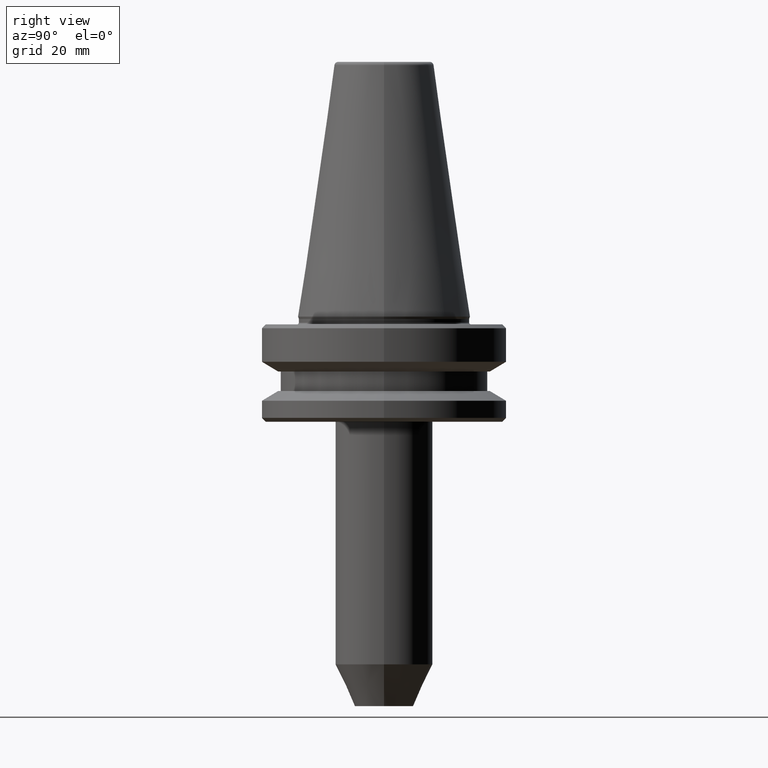
[diagram: clean part render]
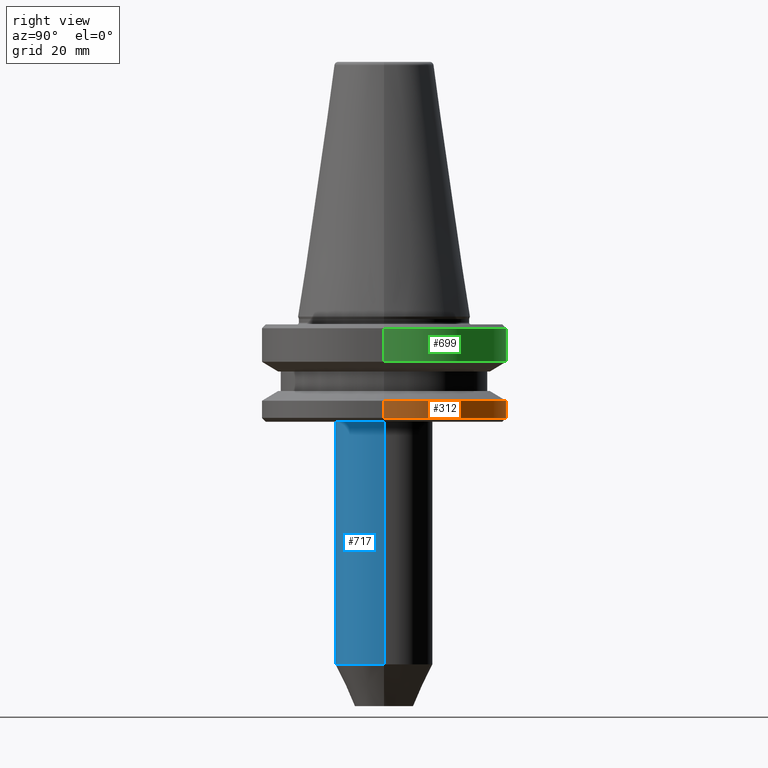
[diagram: same view with three faces highlighted in distinct colors, each labeled with its STEP entity id]
A machine part, right view with three faces highlighted in distinct colors.
Their STEP definitions:

[orange] entity #312 — the highlighted cylindrical surface (partial cylindrical patch) has radius 31.5 mm, axis along (-0, -0, 1).
#23 = VECTOR ( 'NONE', #727, 1000.000000000000000 ) ;
#25 = ORIENTED_EDGE ( 'NONE', *, *, #746, .T. ) ;
#66 = EDGE_CURVE ( 'NONE', #132, #612, #484, .T. ) ;
#72 = CARTESIAN_POINT ( 'NONE',  ( 31.49999999999975100, 0.0000000000000000000, -21.60014200631771400 ) ) ;
#83 = ORIENTED_EDGE ( 'NONE', *, *, #366, .F. ) ;
#124 = CARTESIAN_POINT ( 'NONE',  ( 31.49999999999975100, 0.0000000000000000000, 94.60731411746931500 ) ) ;
#132 = VERTEX_POINT ( 'NONE', #336 ) ;
#144 = AXIS2_PLACEMENT_3D ( 'NONE', #305, #691, #819 ) ;
#159 = EDGE_CURVE ( 'NONE', #933, #262, #659, .T. ) ;
#173 = FACE_OUTER_BOUND ( 'NONE', #885, .T. ) ;
#184 = ORIENTED_EDGE ( 'NONE', *, *, #66, .F. ) ;
#234 = DIRECTION ( 'NONE',  ( -0.0000000000000000000, -0.0000000000000000000, 1.000000000000000000 ) ) ;
#241 = CIRCLE ( 'NONE', #947, 31.49999999999975100 ) ;
#243 = ORIENTED_EDGE ( 'NONE', *, *, #159, .T. ) ;
#262 = VERTEX_POINT ( 'NONE', #760 ) ;
#305 = CARTESIAN_POINT ( 'NONE',  ( 0.0000000000000000000, 0.0000000000000000000, -21.60014200631771400 ) ) ;
#312 = ADVANCED_FACE ( 'NONE', ( #173 ), #961, .T. ) ;
#336 = CARTESIAN_POINT ( 'NONE',  ( 31.49999999999975100, 0.0000000000000000000, -26.00000000000057900 ) ) ;
#366 = EDGE_CURVE ( 'NONE', #612, #262, #701, .T. ) ;
#433 = CARTESIAN_POINT ( 'NONE',  ( -31.49999999999975100, 3.857637417314131900E-015, 94.60731411746931500 ) ) ;
#484 = LINE ( 'NONE', #124, #23 ) ;
#522 = CARTESIAN_POINT ( 'NONE',  ( 0.0000000000000000000, 0.0000000000000000000, 94.60731411746931500 ) ) ;
#599 = VECTOR ( 'NONE', #234, 1000.000000000000000 ) ;
#602 = DIRECTION ( 'NONE',  ( -0.0000000000000000000, -0.0000000000000000000, 1.000000000000000000 ) ) ;
#612 = VERTEX_POINT ( 'NONE', #72 ) ;
#659 = LINE ( 'NONE', #433, #599 ) ;
#674 = DIRECTION ( 'NONE',  ( 1.000000000000000000, 0.0000000000000000000, 0.0000000000000000000 ) ) ;
#676 = CARTESIAN_POINT ( 'NONE',  ( -31.49999999999975100, 3.857637417314131900E-015, -26.00000000000057900 ) ) ;
#686 = CARTESIAN_POINT ( 'NONE',  ( 0.0000000000000000000, 0.0000000000000000000, -26.00000000000057900 ) ) ;
#691 = DIRECTION ( 'NONE',  ( -0.0000000000000000000, -0.0000000000000000000, 1.000000000000000000 ) ) ;
#701 = CIRCLE ( 'NONE', #144, 31.49999999999975100 ) ;
#706 = AXIS2_PLACEMENT_3D ( 'NONE', #522, #733, #873 ) ;
#727 = DIRECTION ( 'NONE',  ( -0.0000000000000000000, -0.0000000000000000000, 1.000000000000000000 ) ) ;
#733 = DIRECTION ( 'NONE',  ( -0.0000000000000000000, -0.0000000000000000000, 1.000000000000000000 ) ) ;
#746 = EDGE_CURVE ( 'NONE', #132, #933, #241, .T. ) ;
#760 = CARTESIAN_POINT ( 'NONE',  ( -31.49999999999975100, 3.857637417314131900E-015, -21.60014200631771400 ) ) ;
#819 = DIRECTION ( 'NONE',  ( 1.000000000000000000, 0.0000000000000000000, 0.0000000000000000000 ) ) ;
#873 = DIRECTION ( 'NONE',  ( 1.000000000000000000, 0.0000000000000000000, 0.0000000000000000000 ) ) ;
#885 = EDGE_LOOP ( 'NONE', ( #25, #243, #83, #184 ) ) ;
#933 = VERTEX_POINT ( 'NONE', #676 ) ;
#947 = AXIS2_PLACEMENT_3D ( 'NONE', #686, #602, #674 ) ;
#961 = CYLINDRICAL_SURFACE ( 'NONE', #706, 31.49999999999975100 ) ;

[blue] entity #717 — the highlighted cylindrical surface (partial cylindrical patch) has radius 12.5 mm, axis along (-0, -0, 1).
#63 = AXIS2_PLACEMENT_3D ( 'NONE', #632, #166, #149 ) ;
#122 = LINE ( 'NONE', #736, #219 ) ;
#128 = EDGE_LOOP ( 'NONE', ( #847, #201, #447, #804 ) ) ;
#131 = DIRECTION ( 'NONE',  ( -0.0000000000000000000, -0.0000000000000000000, 1.000000000000000000 ) ) ;
#135 = DIRECTION ( 'NONE',  ( 1.000000000000000000, 0.0000000000000000000, 0.0000000000000000000 ) ) ;
#149 = DIRECTION ( 'NONE',  ( 1.000000000000000000, 0.0000000000000000000, 0.0000000000000000000 ) ) ;
#166 = DIRECTION ( 'NONE',  ( -0.0000000000000000000, -0.0000000000000000000, 1.000000000000000000 ) ) ;
#178 = AXIS2_PLACEMENT_3D ( 'NONE', #192, #834, #135 ) ;
#192 = CARTESIAN_POINT ( 'NONE',  ( 0.0000000000000000000, 0.0000000000000000000, -89.27746539754971900 ) ) ;
#201 = ORIENTED_EDGE ( 'NONE', *, *, #868, .T. ) ;
#210 = EDGE_CURVE ( 'NONE', #836, #217, #565, .T. ) ;
#213 = VERTEX_POINT ( 'NONE', #773 ) ;
#217 = VERTEX_POINT ( 'NONE', #572 ) ;
#219 = VECTOR ( 'NONE', #899, 1000.000000000000000 ) ;
#310 = CARTESIAN_POINT ( 'NONE',  ( 0.0000000000000000000, 0.0000000000000000000, -27.00000000000102300 ) ) ;
#413 = CIRCLE ( 'NONE', #178, 12.49999999999973400 ) ;
#447 = ORIENTED_EDGE ( 'NONE', *, *, #210, .T. ) ;
#536 = EDGE_CURVE ( 'NONE', #213, #217, #963, .T. ) ;
#537 = CARTESIAN_POINT ( 'NONE',  ( 12.49999999999973400, 0.0000000000000000000, -89.27746539754971900 ) ) ;
#541 = VECTOR ( 'NONE', #131, 1000.000000000000000 ) ;
#546 = DIRECTION ( 'NONE',  ( 1.000000000000000000, 0.0000000000000000000, 0.0000000000000000000 ) ) ;
#565 = LINE ( 'NONE', #917, #541 ) ;
#572 = CARTESIAN_POINT ( 'NONE',  ( 12.49999999999973400, 0.0000000000000000000, -27.00000000000102300 ) ) ;
#614 = CARTESIAN_POINT ( 'NONE',  ( -12.49999999999973400, 1.530808498934158800E-015, -89.27746539754971900 ) ) ;
#632 = CARTESIAN_POINT ( 'NONE',  ( 0.0000000000000000000, 0.0000000000000000000, 94.60731411746931500 ) ) ;
#712 = EDGE_CURVE ( 'NONE', #770, #213, #122, .T. ) ;
#717 = ADVANCED_FACE ( 'NONE', ( #995 ), #915, .T. ) ;
#736 = CARTESIAN_POINT ( 'NONE',  ( -12.49999999999973400, 1.530808498934158800E-015, 94.60731411746931500 ) ) ;
#770 = VERTEX_POINT ( 'NONE', #614 ) ;
#773 = CARTESIAN_POINT ( 'NONE',  ( -12.49999999999973400, 1.530808498934158800E-015, -27.00000000000102300 ) ) ;
#804 = ORIENTED_EDGE ( 'NONE', *, *, #536, .F. ) ;
#834 = DIRECTION ( 'NONE',  ( -0.0000000000000000000, -0.0000000000000000000, 1.000000000000000000 ) ) ;
#836 = VERTEX_POINT ( 'NONE', #537 ) ;
#847 = ORIENTED_EDGE ( 'NONE', *, *, #712, .F. ) ;
#863 = AXIS2_PLACEMENT_3D ( 'NONE', #310, #902, #546 ) ;
#868 = EDGE_CURVE ( 'NONE', #770, #836, #413, .T. ) ;
#899 = DIRECTION ( 'NONE',  ( -0.0000000000000000000, -0.0000000000000000000, 1.000000000000000000 ) ) ;
#902 = DIRECTION ( 'NONE',  ( -0.0000000000000000000, -0.0000000000000000000, 1.000000000000000000 ) ) ;
#915 = CYLINDRICAL_SURFACE ( 'NONE', #63, 12.49999999999973400 ) ;
#917 = CARTESIAN_POINT ( 'NONE',  ( 12.49999999999973400, 0.0000000000000000000, 94.60731411746931500 ) ) ;
#963 = CIRCLE ( 'NONE', #863, 12.49999999999973400 ) ;
#995 = FACE_OUTER_BOUND ( 'NONE', #128, .T. ) ;

[green] entity #699 — the highlighted cylindrical surface (partial cylindrical patch) has radius 31.5 mm, axis along (-0, -0, 1).
#85 = ORIENTED_EDGE ( 'NONE', *, *, #629, .F. ) ;
#86 = EDGE_CURVE ( 'NONE', #100, #257, #448, .T. ) ;
#100 = VERTEX_POINT ( 'NONE', #735 ) ;
#102 = CARTESIAN_POINT ( 'NONE',  ( 0.0000000000000000000, 0.0000000000000000000, -3.000000000000557800 ) ) ;
#112 = EDGE_CURVE ( 'NONE', #984, #100, #742, .T. ) ;
#137 = ORIENTED_EDGE ( 'NONE', *, *, #112, .T. ) ;
#163 = CYLINDRICAL_SURFACE ( 'NONE', #238, 31.49999999999975100 ) ;
#170 = CARTESIAN_POINT ( 'NONE',  ( 31.49999999999975100, 0.0000000000000000000, -3.000000000000557800 ) ) ;
#176 = CARTESIAN_POINT ( 'NONE',  ( -31.49999999999975100, 3.857637417314131900E-015, 94.60731411746931500 ) ) ;
#195 = CARTESIAN_POINT ( 'NONE',  ( -31.49999999999975100, 3.857637417314131900E-015, -3.000000000000557800 ) ) ;
#203 = DIRECTION ( 'NONE',  ( 1.000000000000000000, 0.0000000000000000000, 0.0000000000000000000 ) ) ;
#221 = CARTESIAN_POINT ( 'NONE',  ( 31.49999999999975100, 0.0000000000000000000, -11.59985799368418200 ) ) ;
#238 = AXIS2_PLACEMENT_3D ( 'NONE', #750, #779, #267 ) ;
#246 = VECTOR ( 'NONE', #914, 1000.000000000000000 ) ;
#257 = VERTEX_POINT ( 'NONE', #195 ) ;
#267 = DIRECTION ( 'NONE',  ( 1.000000000000000000, 0.0000000000000000000, 0.0000000000000000000 ) ) ;
#394 = DIRECTION ( 'NONE',  ( -0.0000000000000000000, -0.0000000000000000000, 1.000000000000000000 ) ) ;
#419 = AXIS2_PLACEMENT_3D ( 'NONE', #102, #462, #839 ) ;
#440 = CIRCLE ( 'NONE', #419, 31.49999999999975100 ) ;
#444 = DIRECTION ( 'NONE',  ( -0.0000000000000000000, -0.0000000000000000000, 1.000000000000000000 ) ) ;
#448 = LINE ( 'NONE', #176, #246 ) ;
#462 = DIRECTION ( 'NONE',  ( -0.0000000000000000000, -0.0000000000000000000, 1.000000000000000000 ) ) ;
#558 = VECTOR ( 'NONE', #444, 1000.000000000000000 ) ;
#583 = LINE ( 'NONE', #972, #558 ) ;
#629 = EDGE_CURVE ( 'NONE', #984, #698, #583, .T. ) ;
#642 = FACE_OUTER_BOUND ( 'NONE', #731, .T. ) ;
#647 = ORIENTED_EDGE ( 'NONE', *, *, #86, .T. ) ;
#698 = VERTEX_POINT ( 'NONE', #170 ) ;
#699 = ADVANCED_FACE ( 'NONE', ( #642 ), #163, .T. ) ;
#731 = EDGE_LOOP ( 'NONE', ( #137, #647, #837, #85 ) ) ;
#735 = CARTESIAN_POINT ( 'NONE',  ( -31.49999999999975100, 3.857637417314132700E-015, -11.59985799368418200 ) ) ;
#742 = CIRCLE ( 'NONE', #777, 31.49999999999975100 ) ;
#750 = CARTESIAN_POINT ( 'NONE',  ( 0.0000000000000000000, 0.0000000000000000000, 94.60731411746931500 ) ) ;
#777 = AXIS2_PLACEMENT_3D ( 'NONE', #978, #394, #203 ) ;
#779 = DIRECTION ( 'NONE',  ( -0.0000000000000000000, -0.0000000000000000000, 1.000000000000000000 ) ) ;
#837 = ORIENTED_EDGE ( 'NONE', *, *, #889, .F. ) ;
#839 = DIRECTION ( 'NONE',  ( 1.000000000000000000, 0.0000000000000000000, 0.0000000000000000000 ) ) ;
#889 = EDGE_CURVE ( 'NONE', #698, #257, #440, .T. ) ;
#914 = DIRECTION ( 'NONE',  ( -0.0000000000000000000, -0.0000000000000000000, 1.000000000000000000 ) ) ;
#972 = CARTESIAN_POINT ( 'NONE',  ( 31.49999999999975100, 0.0000000000000000000, 94.60731411746931500 ) ) ;
#978 = CARTESIAN_POINT ( 'NONE',  ( 0.0000000000000000000, 0.0000000000000000000, -11.59985799368418200 ) ) ;
#984 = VERTEX_POINT ( 'NONE', #221 ) ;